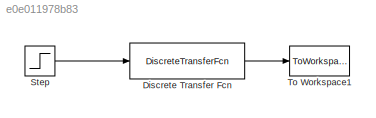
MODEL slx_e0e011978b83
KIND model
CONFIG AbsTol = auto
CONFIG EnableMultiTasking = off
CONFIG FixedStep = auto
CONFIG MaxStep = auto
CONFIG MinStep = auto
CONFIG RelTol = 1e-3
CONFIG SampleTimeConstraint = Unconstrained
CONFIG Solver = VariableStepAuto
CONFIG SolverName = VariableStepAuto
CONFIG StartTime = 0.0
CONFIG StopTime = 5
BLOCK [DiscreteTransferFcn] Discrete Transfer Fcn
  Denominator = [1 -1.1 .2125]
  InputPortMap = u0
  Numerator = [0 2 -5]
  Ports = [1, 1]
  SampleTime = 1
BLOCK [Step] Step
  SampleTime = 0
  Time = 0
BLOCK [ToWorkspace] To Workspace1
  FixptAsFi = on
  MaxDataPoints = inf
  Ports = [1]
  SampleTime = -1
  Save2DSignal = 3-D array (concatenate along third dimension)
  SaveFormat = Timeseries
  VariableName = H2D
LINE Discrete Transfer Fcn:1 -> To Workspace1:1
LINE Step:1 -> Discrete Transfer Fcn:1
